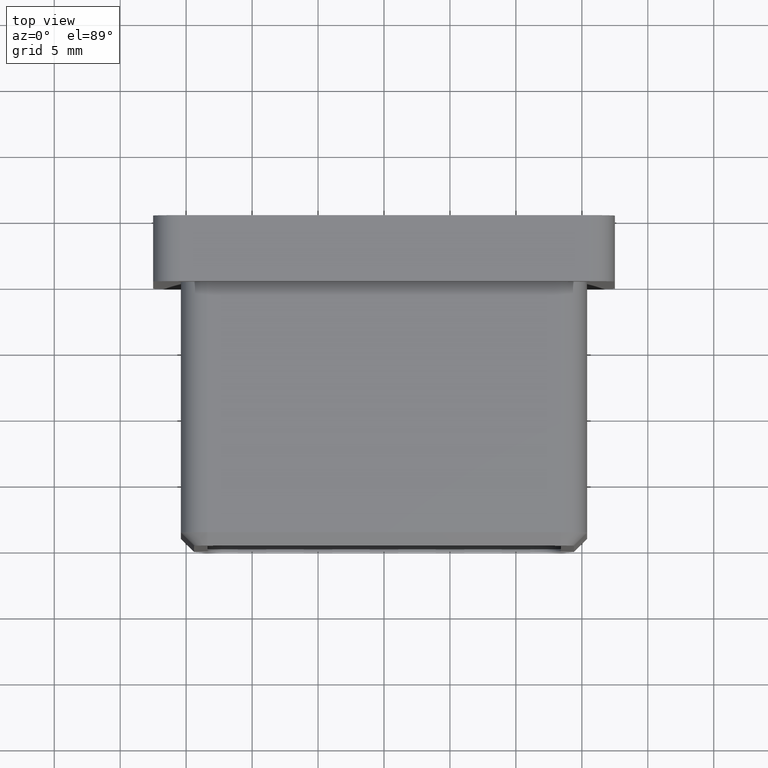
[diagram: clean part render]
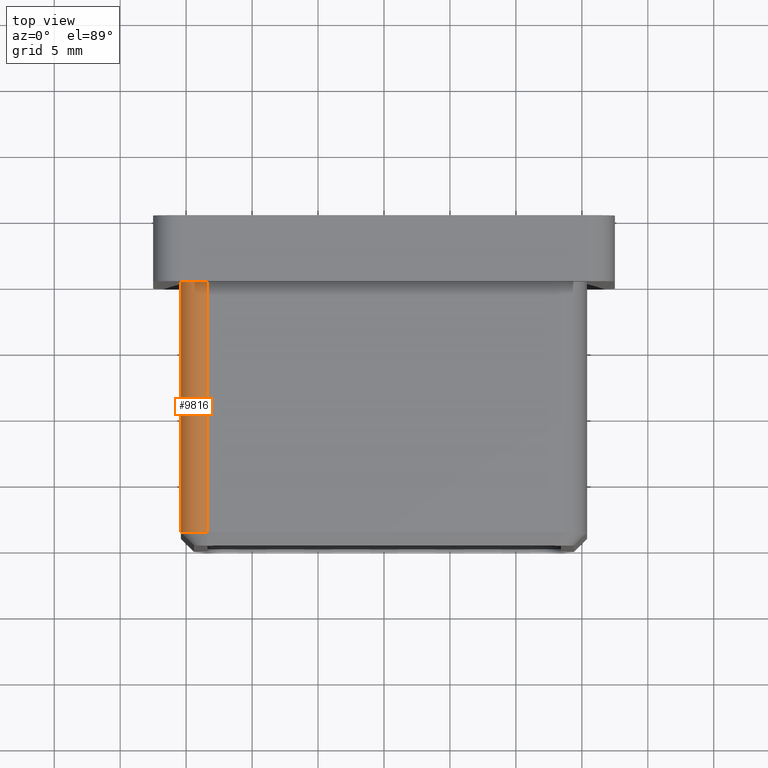
[diagram: same view with one face highlighted and labeled with its STEP entity id]
A machine part, top view. The second image highlights one B-rep face of the part: STEP entity #9816.
In plain terms, the highlighted cylindrical surface (edge-blend (fillet) strip) has radius 2 mm, axis along (-0, 1, 0).
Its self-contained STEP definition (entity closure, byte-faithful):
#543 = VERTEX_POINT ( 'NONE', #4646 ) ;
#777 = DIRECTION ( 'NONE',  ( -0.0000000000000000000, 1.000000000000000000, 0.0000000000000000000 ) ) ;
#1220 = VECTOR ( 'NONE', #9323, 1000.000000000000000 ) ;
#1754 = AXIS2_PLACEMENT_3D ( 'NONE', #10673, #5760, #9510 ) ;
#2251 = CARTESIAN_POINT ( 'NONE',  ( -13.40000000000000200, 0.0000000000000000000, 15.40000000000000000 ) ) ;
#2437 = ORIENTED_EDGE ( 'NONE', *, *, #15374, .F. ) ;
#2845 = DIRECTION ( 'NONE',  ( -0.0000000000000000000, 1.000000000000000000, 0.0000000000000000000 ) ) ;
#4290 = EDGE_CURVE ( 'NONE', #12467, #543, #8143, .T. ) ;
#4646 = CARTESIAN_POINT ( 'NONE',  ( -13.40000000000000000, -19.00000000000000000, 15.40000000000000000 ) ) ;
#5261 = CARTESIAN_POINT ( 'NONE',  ( -15.40000000000000000, -19.00000000000000000, 13.40000000000000000 ) ) ;
#5760 = DIRECTION ( 'NONE',  ( 0.0000000000000000000, 1.000000000000000000, 0.0000000000000000000 ) ) ;
#6317 = ORIENTED_EDGE ( 'NONE', *, *, #14664, .F. ) ;
#6936 = CARTESIAN_POINT ( 'NONE',  ( -15.40000000000000000, -20.00000000000000000, 13.40000000000000000 ) ) ;
#7060 = DIRECTION ( 'NONE',  ( 0.0000000000000000000, 1.000000000000000000, 0.0000000000000000000 ) ) ;
#8081 = CARTESIAN_POINT ( 'NONE',  ( -13.40000000000000000, -19.00000000000000000, 13.40000000000000000 ) ) ;
#8143 = CIRCLE ( 'NONE', #15744, 2.000000000000000000 ) ;
#8278 = AXIS2_PLACEMENT_3D ( 'NONE', #13885, #2845, #13987 ) ;
#8910 = LINE ( 'NONE', #9266, #1220 ) ;
#9266 = CARTESIAN_POINT ( 'NONE',  ( -13.40000000000000000, -20.00000000000000000, 15.40000000000000000 ) ) ;
#9287 = CARTESIAN_POINT ( 'NONE',  ( -15.40000000000000000, 0.0000000000000000000, 13.40000000000000200 ) ) ;
#9323 = DIRECTION ( 'NONE',  ( -0.0000000000000000000, -1.000000000000000000, -0.0000000000000000000 ) ) ;
#9373 = ORIENTED_EDGE ( 'NONE', *, *, #13014, .F. ) ;
#9510 = DIRECTION ( 'NONE',  ( 0.0000000000000000000, 0.0000000000000000000, 1.000000000000000000 ) ) ;
#9686 = FACE_OUTER_BOUND ( 'NONE', #12728, .T. ) ;
#9816 = ADVANCED_FACE ( 'NONE', ( #9686 ), #11796, .T. ) ;
#10400 = DIRECTION ( 'NONE',  ( 0.0000000000000000000, 0.0000000000000000000, -1.000000000000000000 ) ) ;
#10673 = CARTESIAN_POINT ( 'NONE',  ( -13.40000000000000000, 0.0000000000000000000, 13.40000000000000000 ) ) ;
#11554 = VECTOR ( 'NONE', #777, 1000.000000000000000 ) ;
#11796 = CYLINDRICAL_SURFACE ( 'NONE', #8278, 2.000000000000000000 ) ;
#12147 = ORIENTED_EDGE ( 'NONE', *, *, #4290, .T. ) ;
#12467 = VERTEX_POINT ( 'NONE', #5261 ) ;
#12728 = EDGE_LOOP ( 'NONE', ( #6317, #12147, #9373, #2437 ) ) ;
#13014 = EDGE_CURVE ( 'NONE', #13031, #543, #8910, .T. ) ;
#13031 = VERTEX_POINT ( 'NONE', #2251 ) ;
#13692 = CIRCLE ( 'NONE', #1754, 2.000000000000000000 ) ;
#13885 = CARTESIAN_POINT ( 'NONE',  ( -13.40000000000000000, -20.00000000000000000, 13.40000000000000000 ) ) ;
#13987 = DIRECTION ( 'NONE',  ( 0.0000000000000000000, 0.0000000000000000000, 1.000000000000000000 ) ) ;
#14463 = LINE ( 'NONE', #6936, #11554 ) ;
#14600 = VERTEX_POINT ( 'NONE', #9287 ) ;
#14664 = EDGE_CURVE ( 'NONE', #12467, #14600, #14463, .T. ) ;
#15374 = EDGE_CURVE ( 'NONE', #14600, #13031, #13692, .T. ) ;
#15744 = AXIS2_PLACEMENT_3D ( 'NONE', #8081, #7060, #10400 ) ;